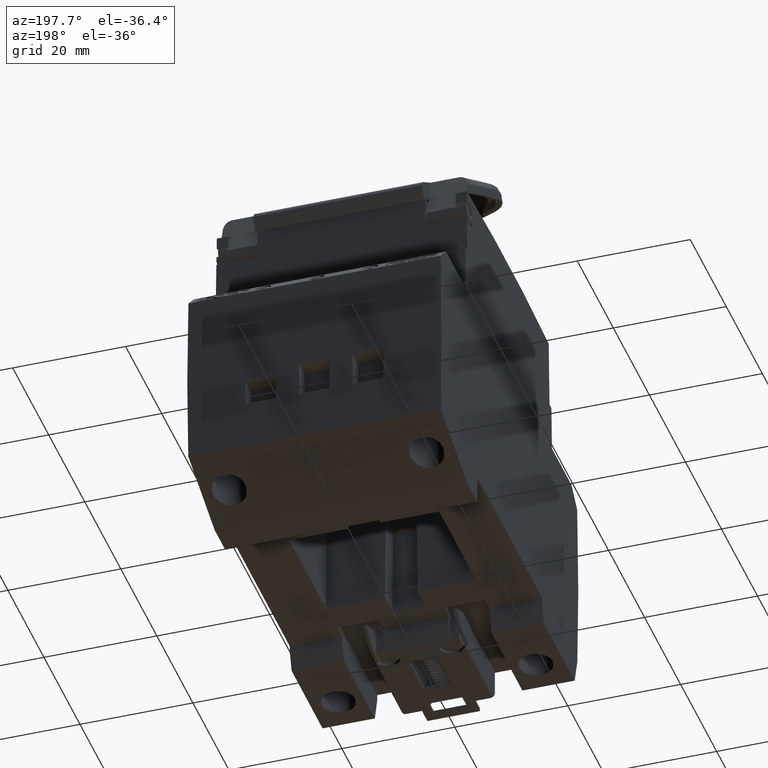
[diagram: clean part render]
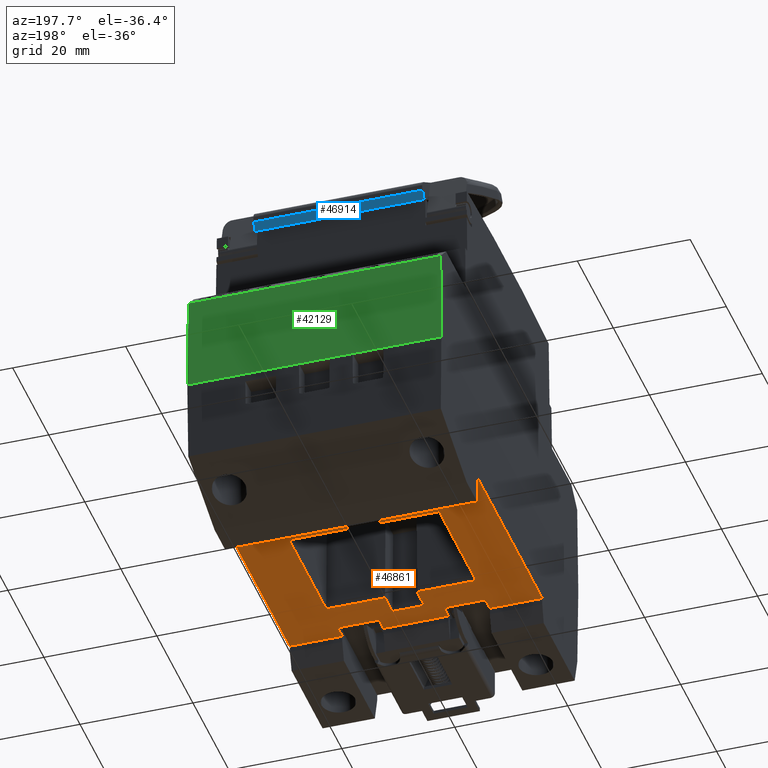
[diagram: same view with three faces highlighted in distinct colors, each labeled with its STEP entity id]
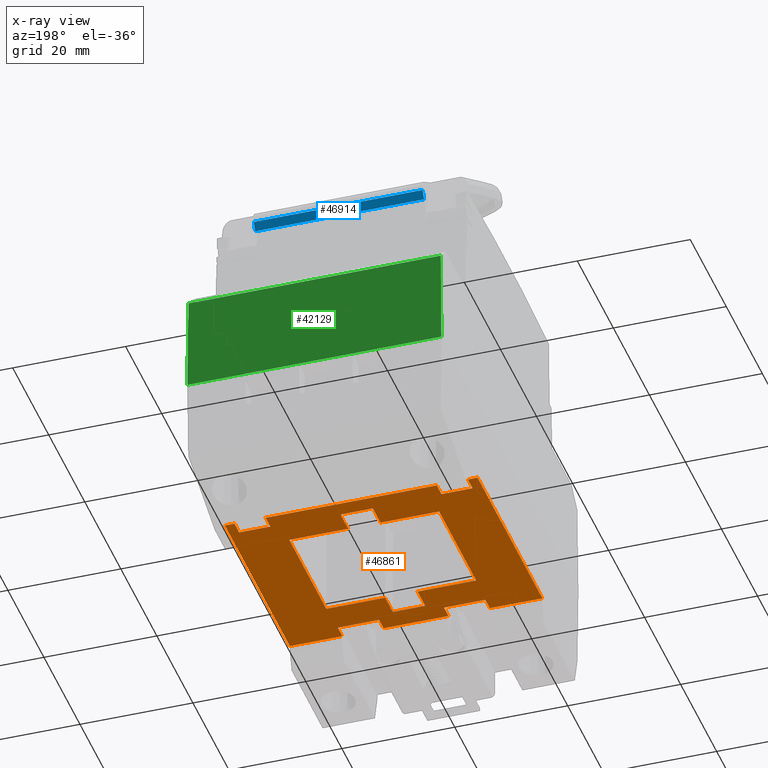
[diagram: x-ray of the same camera — body ghosted, the three highlighted faces saturated]
A machine part, auxiliary view with three faces highlighted in distinct colors.
The next image is the same camera in x-ray (body ghosted, the three faces saturated) — at least one of them is partly hidden behind the body in this view.
Their STEP definitions:

[orange] entity #46861 — the highlighted planar face has unit normal (0, -0, -1).
#3919 = DIRECTION ( 'NONE',  ( -0.0000000000000000000, -1.000000000000000000, 1.927470528863119800E-016 ) ) ;
#3927 = LINE ( 'NONE', #3958, #12830 ) ;
#3958 = CARTESIAN_POINT ( 'NONE',  ( -13.27919503604850100, -18.50000000000000000, -40.34999999999999400 ) ) ;
#3972 = LINE ( 'NONE', #3973, #12819 ) ;
#3973 = CARTESIAN_POINT ( 'NONE',  ( 2.881813096385507800, -18.50000000000000000, -40.34999999999999400 ) ) ;
#3980 = DIRECTION ( 'NONE',  ( -1.000000000000000000, -0.0000000000000000000, -0.0000000000000000000 ) ) ;
#3985 = DIRECTION ( 'NONE',  ( 0.0000000000000000000, 1.000000000000000000, -1.927470528863119800E-016 ) ) ;
#4003 = LINE ( 'NONE', #4012, #12780 ) ;
#4009 = DIRECTION ( 'NONE',  ( -0.0000000000000000000, -1.000000000000000000, 1.927470528863119800E-016 ) ) ;
#4012 = CARTESIAN_POINT ( 'NONE',  ( -30.75000000000000000, 10.27919503604852000, -40.35000000000000100 ) ) ;
#4020 = LINE ( 'NONE', #4022, #12802 ) ;
#4022 = CARTESIAN_POINT ( 'NONE',  ( -2.881813096385934500, -18.50000000000000000, -40.34999999999999400 ) ) ;
#4027 = CARTESIAN_POINT ( 'NONE',  ( -30.75000000000000000, -14.51810085573100300, -40.34999999999999400 ) ) ;
#4036 = LINE ( 'NONE', #4043, #12796 ) ;
#4039 = DIRECTION ( 'NONE',  ( 1.000000000000000000, 0.0000000000000000000, 0.0000000000000000000 ) ) ;
#4041 = LINE ( 'NONE', #4027, #12774 ) ;
#4043 = CARTESIAN_POINT ( 'NONE',  ( 13.27919503604810300, -18.50000000000000000, -40.34999999999999400 ) ) ;
#4044 = DIRECTION ( 'NONE',  ( 0.0000000000000000000, 1.000000000000000000, -1.927470528863119800E-016 ) ) ;
#4045 = LINE ( 'NONE', #4046, #12805 ) ;
#4046 = CARTESIAN_POINT ( 'NONE',  ( -30.75000000000000000, 10.27919503604842300, -40.35000000000000100 ) ) ;
#4064 = DIRECTION ( 'NONE',  ( -1.000000000000000000, -0.0000000000000000000, -0.0000000000000000000 ) ) ;
#4075 = LINE ( 'NONE', #4120, #12825 ) ;
#4079 = CARTESIAN_POINT ( 'NONE',  ( -30.75000000000000000, -18.50000000000000400, -40.34999999999999400 ) ) ;
#4086 = CARTESIAN_POINT ( 'NONE',  ( 13.06124280212683800, -18.50000000000000000, -40.34999999999999400 ) ) ;
#4095 = DIRECTION ( 'NONE',  ( 1.000000000000000000, 0.0000000000000000000, 0.0000000000000000000 ) ) ;
#4098 = DIRECTION ( 'NONE',  ( -1.000000000000000000, -0.0000000000000000000, -0.0000000000000000000 ) ) ;
#4106 = DIRECTION ( 'NONE',  ( 0.0000000000000000000, 1.000000000000000000, -1.927470528863119800E-016 ) ) ;
#4117 = LINE ( 'NONE', #4086, #12823 ) ;
#4118 = LINE ( 'NONE', #4079, #12800 ) ;
#4120 = CARTESIAN_POINT ( 'NONE',  ( -30.75000000000000000, -10.27919503604859800, -40.34999999999999400 ) ) ;
#12774 = VECTOR ( 'NONE', #4039, 1000.000000000000000 ) ;
#12780 = VECTOR ( 'NONE', #3980, 1000.000000000000000 ) ;
#12796 = VECTOR ( 'NONE', #4044, 1000.000000000000000 ) ;
#12800 = VECTOR ( 'NONE', #4098, 1000.000000000000000 ) ;
#12802 = VECTOR ( 'NONE', #4009, 1000.000000000000000 ) ;
#12805 = VECTOR ( 'NONE', #4064, 1000.000000000000000 ) ;
#12819 = VECTOR ( 'NONE', #3985, 1000.000000000000000 ) ;
#12823 = VECTOR ( 'NONE', #4106, 1000.000000000000000 ) ;
#12825 = VECTOR ( 'NONE', #4095, 1000.000000000000000 ) ;
#12830 = VECTOR ( 'NONE', #3919, 1000.000000000000000 ) ;
#13194 = VECTOR ( 'NONE', #59894, 1000.000000000000000 ) ;
#13200 = VECTOR ( 'NONE', #59912, 1000.000000000000000 ) ;
#13226 = VECTOR ( 'NONE', #59745, 1000.000000000000000 ) ;
#13238 = VECTOR ( 'NONE', #59737, 1000.000000000000000 ) ;
#13279 = VECTOR ( 'NONE', #60085, 1000.000000000000000 ) ;
#13575 = FACE_BOUND ( 'NONE', #44837, .T. ) ;
#13718 = LINE ( 'NONE', #13754, #28313 ) ;
#13754 = CARTESIAN_POINT ( 'NONE',  ( -30.75000000000000000, -16.00000000000000000, -40.34999999999999400 ) ) ;
#13809 = DIRECTION ( 'NONE',  ( -1.000000000000000000, -0.0000000000000000000, -0.0000000000000000000 ) ) ;
#15792 = CARTESIAN_POINT ( 'NONE',  ( 2.881813096385507800, -18.50000000000000000, -40.34999999999999400 ) ) ;
#15795 = LINE ( 'NONE', #15867, #28284 ) ;
#15810 = LINE ( 'NONE', #15941, #28203 ) ;
#15841 = DIRECTION ( 'NONE',  ( 0.0000000000000000000, 1.000000000000000000, -1.927470528863119800E-016 ) ) ;
#15854 = LINE ( 'NONE', #15792, #28275 ) ;
#15861 = DIRECTION ( 'NONE',  ( -1.000000000000000000, -0.0000000000000000000, -0.0000000000000000000 ) ) ;
#15867 = CARTESIAN_POINT ( 'NONE',  ( -30.75000000000000000, -18.50000000000000000, -40.34999999999999400 ) ) ;
#15902 = CARTESIAN_POINT ( 'NONE',  ( 20.66037011534779900, -18.50000000000000000, -40.34999999999999400 ) ) ;
#15908 = DIRECTION ( 'NONE',  ( 0.0000000000000000000, 1.000000000000000000, -1.927470528863119800E-016 ) ) ;
#15923 = CARTESIAN_POINT ( 'NONE',  ( -30.75000000000000000, 14.89256351279451700, -40.35000000000000100 ) ) ;
#15925 = DIRECTION ( 'NONE',  ( 1.000000000000000000, 0.0000000000000000000, 0.0000000000000000000 ) ) ;
#15941 = CARTESIAN_POINT ( 'NONE',  ( -15.16037011534780300, -18.50000000000000000, -40.34999999999999400 ) ) ;
#15942 = LINE ( 'NONE', #15993, #28205 ) ;
#15944 = DIRECTION ( 'NONE',  ( 0.0000000000000000000, 1.000000000000000000, -1.927470528863119800E-016 ) ) ;
#15971 = LINE ( 'NONE', #15923, #28210 ) ;
#15973 = LINE ( 'NONE', #15902, #28315 ) ;
#15977 = LINE ( 'NONE', #16062, #28328 ) ;
#15993 = CARTESIAN_POINT ( 'NONE',  ( -5.749999999999998200, -18.50000000000000000, -40.34999999999999400 ) ) ;
#16006 = DIRECTION ( 'NONE',  ( -0.0000000000000000000, -1.000000000000000000, 1.927470528863119800E-016 ) ) ;
#16008 = DIRECTION ( 'NONE',  ( 0.0000000000000000000, 1.000000000000000000, -1.927470528863119800E-016 ) ) ;
#16019 = DIRECTION ( 'NONE',  ( -1.000000000000000000, -0.0000000000000000000, -0.0000000000000000000 ) ) ;
#16021 = LINE ( 'NONE', #16023, #28371 ) ;
#16023 = CARTESIAN_POINT ( 'NONE',  ( 5.749999999999998200, -18.50000000000000000, -40.34999999999999400 ) ) ;
#16062 = CARTESIAN_POINT ( 'NONE',  ( -30.75000000000000000, -16.00000000000000000, -40.34999999999999400 ) ) ;
#16098 = CARTESIAN_POINT ( 'NONE',  ( -30.75000000000000000, -10.27919503604852000, -40.34999999999999400 ) ) ;
#16158 = LINE ( 'NONE', #16098, #28398 ) ;
#16161 = DIRECTION ( 'NONE',  ( 1.000000000000000000, 0.0000000000000000000, 0.0000000000000000000 ) ) ;
#16508 = LINE ( 'NONE', #16651, #28560 ) ;
#16541 = DIRECTION ( 'NONE',  ( -1.000000000000000000, -0.0000000000000000000, -0.0000000000000000000 ) ) ;
#16545 = CARTESIAN_POINT ( 'NONE',  ( -30.75000000000000000, -18.50000000000000000, -40.34999999999999400 ) ) ;
#16566 = LINE ( 'NONE', #16545, #28324 ) ;
#16588 = LINE ( 'NONE', #16590, #28434 ) ;
#16590 = CARTESIAN_POINT ( 'NONE',  ( -30.75000000000000000, 14.89256351279451700, -40.35000000000000100 ) ) ;
#16600 = LINE ( 'NONE', #16603, #28386 ) ;
#16601 = DIRECTION ( 'NONE',  ( -0.0000000000000000000, -1.000000000000000000, 1.927470528863119800E-016 ) ) ;
#16603 = CARTESIAN_POINT ( 'NONE',  ( -20.66037011534779900, -18.50000000000000000, -40.34999999999999400 ) ) ;
#16606 = DIRECTION ( 'NONE',  ( 1.000000000000000000, 0.0000000000000000000, 0.0000000000000000000 ) ) ;
#16642 = CARTESIAN_POINT ( 'NONE',  ( -13.06124280212683800, -18.50000000000000000, -40.34999999999999400 ) ) ;
#16647 = LINE ( 'NONE', #16668, #28580 ) ;
#16651 = CARTESIAN_POINT ( 'NONE',  ( -30.75000000000000000, 14.51810085573100300, -40.35000000000000100 ) ) ;
#16653 = CARTESIAN_POINT ( 'NONE',  ( -2.881813096385934500, -18.50000000000000000, -40.34999999999999400 ) ) ;
#16656 = DIRECTION ( 'NONE',  ( -0.0000000000000000000, -1.000000000000000000, 1.927470528863119800E-016 ) ) ;
#16661 = DIRECTION ( 'NONE',  ( -0.0000000000000000000, -1.000000000000000000, 1.927470528863119800E-016 ) ) ;
#16662 = DIRECTION ( 'NONE',  ( -0.0000000000000000000, -1.000000000000000000, 1.927470528863119800E-016 ) ) ;
#16666 = LINE ( 'NONE', #16642, #28570 ) ;
#16667 = LINE ( 'NONE', #16653, #28571 ) ;
#16668 = CARTESIAN_POINT ( 'NONE',  ( 15.16037011534780600, -18.50000000000000000, -40.34999999999999400 ) ) ;
#16673 = DIRECTION ( 'NONE',  ( -1.000000000000000000, -0.0000000000000000000, -0.0000000000000000000 ) ) ;
#20796 = PLANE ( 'NONE',  #28787 ) ;
#20800 = DIRECTION ( 'NONE',  ( 0.0000000000000000000, -1.927470528863119800E-016, -1.000000000000000000 ) ) ;
#20810 = FACE_OUTER_BOUND ( 'NONE', #44780, .T. ) ;
#20822 = DIRECTION ( 'NONE',  ( 0.0000000000000000000, 1.000000000000000000, -1.927470528863119800E-016 ) ) ;
#20833 = CARTESIAN_POINT ( 'NONE',  ( -30.75000000000000000, -18.50000000000000000, -40.34999999999999400 ) ) ;
#28203 = VECTOR ( 'NONE', #15908, 1000.000000000000000 ) ;
#28205 = VECTOR ( 'NONE', #16008, 1000.000000000000000 ) ;
#28210 = VECTOR ( 'NONE', #15925, 1000.000000000000000 ) ;
#28275 = VECTOR ( 'NONE', #15841, 1000.000000000000000 ) ;
#28284 = VECTOR ( 'NONE', #15861, 1000.000000000000000 ) ;
#28313 = VECTOR ( 'NONE', #13809, 1000.000000000000000 ) ;
#28315 = VECTOR ( 'NONE', #15944, 1000.000000000000000 ) ;
#28324 = VECTOR ( 'NONE', #16541, 1000.000000000000000 ) ;
#28328 = VECTOR ( 'NONE', #16019, 1000.000000000000000 ) ;
#28371 = VECTOR ( 'NONE', #16006, 1000.000000000000000 ) ;
#28386 = VECTOR ( 'NONE', #16601, 1000.000000000000000 ) ;
#28398 = VECTOR ( 'NONE', #16161, 1000.000000000000000 ) ;
#28434 = VECTOR ( 'NONE', #16606, 1000.000000000000000 ) ;
#28560 = VECTOR ( 'NONE', #16673, 1000.000000000000000 ) ;
#28570 = VECTOR ( 'NONE', #16661, 1000.000000000000000 ) ;
#28571 = VECTOR ( 'NONE', #16662, 1000.000000000000000 ) ;
#28580 = VECTOR ( 'NONE', #16656, 1000.000000000000000 ) ;
#28787 = AXIS2_PLACEMENT_3D ( 'NONE', #20833, #20800, #20822 ) ;
#32769 = CARTESIAN_POINT ( 'NONE',  ( 15.16037011534780300, 14.89256351279451900, -40.34999999999999400 ) ) ;
#32778 = CARTESIAN_POINT ( 'NONE',  ( -15.16037011534780300, 17.50000000000000000, -40.34999999999999400 ) ) ;
#32801 = CARTESIAN_POINT ( 'NONE',  ( -15.16037011534780300, 14.89256351279451900, -40.34999999999999400 ) ) ;
#32809 = CARTESIAN_POINT ( 'NONE',  ( 5.750000000000000000, -18.49999999999999600, -40.34999999999999400 ) ) ;
#32816 = CARTESIAN_POINT ( 'NONE',  ( -5.749999999999999100, -18.50000000000000000, -40.34999999999999400 ) ) ;
#32818 = CARTESIAN_POINT ( 'NONE',  ( -20.66037011534779900, 17.50000000000000000, -40.34999999999999400 ) ) ;
#32822 = CARTESIAN_POINT ( 'NONE',  ( 13.06124280212683800, -16.00000000000000000, -40.34999999999999400 ) ) ;
#32828 = CARTESIAN_POINT ( 'NONE',  ( 5.750000000000000000, -16.00000000000000400, -40.34999999999999400 ) ) ;
#32838 = CARTESIAN_POINT ( 'NONE',  ( 2.881813096385505500, 14.51810085573100300, -40.34999999999999400 ) ) ;
#32845 = CARTESIAN_POINT ( 'NONE',  ( 20.66037011534780300, 14.89256351279451900, -40.34999999999999400 ) ) ;
#32847 = CARTESIAN_POINT ( 'NONE',  ( -20.66037011534779900, 14.89256351279451900, -40.34999999999999400 ) ) ;
#32862 = CARTESIAN_POINT ( 'NONE',  ( 15.16037011534780600, 17.50000000000000000, -40.34999999999999400 ) ) ;
#32869 = CARTESIAN_POINT ( 'NONE',  ( -2.881813096385934500, 10.27919503604842600, -40.34999999999999400 ) ) ;
#32871 = CARTESIAN_POINT ( 'NONE',  ( 13.06124280212683800, -18.50000000000000400, -40.34999999999999400 ) ) ;
#32875 = CARTESIAN_POINT ( 'NONE',  ( 2.881813096385506000, -14.51810085573100300, -40.34999999999999400 ) ) ;
#32876 = CARTESIAN_POINT ( 'NONE',  ( 13.27919503604810300, -10.27919503604852000, -40.34999999999999400 ) ) ;
#32877 = CARTESIAN_POINT ( 'NONE',  ( 2.881813096385505100, -10.27919503604852000, -40.34999999999999400 ) ) ;
#32879 = CARTESIAN_POINT ( 'NONE',  ( -13.27919503604850200, -10.27919503604859700, -40.34999999999999400 ) ) ;
#32884 = CARTESIAN_POINT ( 'NONE',  ( -2.881813096385935000, 14.51810085573100300, -40.34999999999999400 ) ) ;
#32887 = CARTESIAN_POINT ( 'NONE',  ( -13.27919503604850100, 10.27919503604853400, -40.34999999999999400 ) ) ;
#32892 = CARTESIAN_POINT ( 'NONE',  ( 20.66037011534779900, 17.50000000000000000, -40.34999999999999400 ) ) ;
#32896 = CARTESIAN_POINT ( 'NONE',  ( -2.881813096385934500, -14.51810085573100300, -40.34999999999999400 ) ) ;
#32897 = CARTESIAN_POINT ( 'NONE',  ( -13.06124280212683800, -16.00000000000000400, -40.34999999999999400 ) ) ;
#32913 = CARTESIAN_POINT ( 'NONE',  ( -5.750000000000000000, -16.00000000000000000, -40.34999999999999400 ) ) ;
#32915 = CARTESIAN_POINT ( 'NONE',  ( 2.881813096385506000, 10.27919503604852200, -40.34999999999999400 ) ) ;
#32920 = CARTESIAN_POINT ( 'NONE',  ( -22.36537030573969900, -18.50000000000000400, -40.34999999999999400 ) ) ;
#32934 = CARTESIAN_POINT ( 'NONE',  ( 22.36537030573972000, -18.50000000000000400, -40.34999999999999400 ) ) ;
#32936 = CARTESIAN_POINT ( 'NONE',  ( -2.881813096385935400, -10.27919503604848800, -40.34999999999999400 ) ) ;
#32952 = CARTESIAN_POINT ( 'NONE',  ( 13.27919503604810300, 10.27919503604852000, -40.34999999999999400 ) ) ;
#32958 = CARTESIAN_POINT ( 'NONE',  ( -13.06124280212683800, -18.50000000000000000, -40.34999999999999400 ) ) ;
#33164 = CARTESIAN_POINT ( 'NONE',  ( 22.36537030573972000, 17.50000000000000000, -40.34999999999999400 ) ) ;
#33225 = CARTESIAN_POINT ( 'NONE',  ( -22.36537030573969900, 17.50000000000000000, -40.34999999999999400 ) ) ;
#37183 = VERTEX_POINT ( 'NONE', #32818 ) ;
#37187 = VERTEX_POINT ( 'NONE', #32828 ) ;
#37197 = VERTEX_POINT ( 'NONE', #32816 ) ;
#37232 = VERTEX_POINT ( 'NONE', #32801 ) ;
#37246 = VERTEX_POINT ( 'NONE', #32769 ) ;
#37248 = VERTEX_POINT ( 'NONE', #32778 ) ;
#37249 = VERTEX_POINT ( 'NONE', #32809 ) ;
#37263 = VERTEX_POINT ( 'NONE', #32822 ) ;
#37267 = VERTEX_POINT ( 'NONE', #32892 ) ;
#37283 = VERTEX_POINT ( 'NONE', #32862 ) ;
#37294 = VERTEX_POINT ( 'NONE', #32845 ) ;
#37323 = VERTEX_POINT ( 'NONE', #32838 ) ;
#37337 = VERTEX_POINT ( 'NONE', #32887 ) ;
#37341 = VERTEX_POINT ( 'NONE', #32877 ) ;
#37366 = VERTEX_POINT ( 'NONE', #32847 ) ;
#37392 = VERTEX_POINT ( 'NONE', #32869 ) ;
#37396 = VERTEX_POINT ( 'NONE', #32871 ) ;
#37402 = VERTEX_POINT ( 'NONE', #32876 ) ;
#37404 = VERTEX_POINT ( 'NONE', #32875 ) ;
#37406 = VERTEX_POINT ( 'NONE', #32879 ) ;
#37408 = VERTEX_POINT ( 'NONE', #32884 ) ;
#37427 = VERTEX_POINT ( 'NONE', #32934 ) ;
#37429 = VERTEX_POINT ( 'NONE', #32896 ) ;
#37439 = VERTEX_POINT ( 'NONE', #32897 ) ;
#37441 = VERTEX_POINT ( 'NONE', #32958 ) ;
#37443 = VERTEX_POINT ( 'NONE', #32952 ) ;
#37445 = VERTEX_POINT ( 'NONE', #32936 ) ;
#37448 = VERTEX_POINT ( 'NONE', #32913 ) ;
#37451 = VERTEX_POINT ( 'NONE', #32915 ) ;
#37488 = VERTEX_POINT ( 'NONE', #32920 ) ;
#38024 = VERTEX_POINT ( 'NONE', #33164 ) ;
#38085 = VERTEX_POINT ( 'NONE', #33225 ) ;
#40490 = ORIENTED_EDGE ( 'NONE', *, *, #43452, .T. ) ;
#40524 = ORIENTED_EDGE ( 'NONE', *, *, #43562, .T. ) ;
#41837 = ORIENTED_EDGE ( 'NONE', *, *, #52946, .T. ) ;
#41841 = ORIENTED_EDGE ( 'NONE', *, *, #52950, .T. ) ;
#41860 = ORIENTED_EDGE ( 'NONE', *, *, #53511, .T. ) ;
#41870 = ORIENTED_EDGE ( 'NONE', *, *, #43416, .T. ) ;
#41872 = ORIENTED_EDGE ( 'NONE', *, *, #52964, .T. ) ;
#41874 = ORIENTED_EDGE ( 'NONE', *, *, #52942, .T. ) ;
#41878 = ORIENTED_EDGE ( 'NONE', *, *, #43414, .T. ) ;
#41880 = ORIENTED_EDGE ( 'NONE', *, *, #52928, .T. ) ;
#41882 = ORIENTED_EDGE ( 'NONE', *, *, #43499, .T. ) ;
#41898 = ORIENTED_EDGE ( 'NONE', *, *, #43639, .T. ) ;
#41904 = ORIENTED_EDGE ( 'NONE', *, *, #43393, .T. ) ;
#41914 = ORIENTED_EDGE ( 'NONE', *, *, #53485, .T. ) ;
#41931 = ORIENTED_EDGE ( 'NONE', *, *, #53536, .T. ) ;
#41939 = ORIENTED_EDGE ( 'NONE', *, *, #53493, .T. ) ;
#41943 = ORIENTED_EDGE ( 'NONE', *, *, #43423, .T. ) ;
#41950 = ORIENTED_EDGE ( 'NONE', *, *, #52954, .T. ) ;
#41952 = ORIENTED_EDGE ( 'NONE', *, *, #52929, .T. ) ;
#41954 = ORIENTED_EDGE ( 'NONE', *, *, #43649, .T. ) ;
#41979 = ORIENTED_EDGE ( 'NONE', *, *, #53501, .T. ) ;
#41987 = ORIENTED_EDGE ( 'NONE', *, *, #43645, .T. ) ;
#41996 = ORIENTED_EDGE ( 'NONE', *, *, #43605, .T. ) ;
#42003 = ORIENTED_EDGE ( 'NONE', *, *, #43471, .T. ) ;
#42013 = ORIENTED_EDGE ( 'NONE', *, *, #52938, .T. ) ;
#42015 = ORIENTED_EDGE ( 'NONE', *, *, #43436, .T. ) ;
#42019 = ORIENTED_EDGE ( 'NONE', *, *, #43665, .T. ) ;
#42020 = ORIENTED_EDGE ( 'NONE', *, *, #43614, .T. ) ;
#42028 = ORIENTED_EDGE ( 'NONE', *, *, #43450, .T. ) ;
#42046 = ORIENTED_EDGE ( 'NONE', *, *, #43469, .T. ) ;
#42056 = ORIENTED_EDGE ( 'NONE', *, *, #52930, .T. ) ;
#42065 = ORIENTED_EDGE ( 'NONE', *, *, #52923, .T. ) ;
#43393 = EDGE_CURVE ( 'NONE', #37263, #37187, #13718, .T. ) ;
#43414 = EDGE_CURVE ( 'NONE', #37404, #37341, #15854, .T. ) ;
#43416 = EDGE_CURVE ( 'NONE', #37441, #37488, #15795, .T. ) ;
#43423 = EDGE_CURVE ( 'NONE', #37294, #37267, #15973, .T. ) ;
#43436 = EDGE_CURVE ( 'NONE', #37366, #37232, #15971, .T. ) ;
#43450 = EDGE_CURVE ( 'NONE', #37232, #37248, #15810, .T. ) ;
#43452 = EDGE_CURVE ( 'NONE', #37197, #37448, #15942, .T. ) ;
#43469 = EDGE_CURVE ( 'NONE', #37448, #37439, #15977, .T. ) ;
#43471 = EDGE_CURVE ( 'NONE', #37187, #37249, #16021, .T. ) ;
#43499 = EDGE_CURVE ( 'NONE', #37341, #37402, #16158, .T. ) ;
#43562 = EDGE_CURVE ( 'NONE', #37249, #37197, #16566, .T. ) ;
#43605 = EDGE_CURVE ( 'NONE', #37183, #37366, #16600, .T. ) ;
#43614 = EDGE_CURVE ( 'NONE', #37246, #37294, #16588, .T. ) ;
#43639 = EDGE_CURVE ( 'NONE', #37283, #37246, #16647, .T. ) ;
#43645 = EDGE_CURVE ( 'NONE', #37439, #37441, #16666, .T. ) ;
#43649 = EDGE_CURVE ( 'NONE', #37323, #37408, #16508, .T. ) ;
#43665 = EDGE_CURVE ( 'NONE', #37445, #37429, #16667, .T. ) ;
#44780 = EDGE_LOOP ( 'NONE', ( #41870, #41931, #41939, #41996, #42015, #42028, #41979, #41898, #42020, #41943, #41860, #41914, #41950, #41872, #41904, #42003, #40524, #40490, #42046, #41987 ) ) ;
#44837 = EDGE_LOOP ( 'NONE', ( #42019, #41874, #41878, #41882, #41837, #41952, #42056, #41954, #41880, #42013, #42065, #41841 ) ) ;
#46861 = ADVANCED_FACE ( 'NONE', ( #13575, #20810 ), #20796, .T. ) ;
#52923 = EDGE_CURVE ( 'NONE', #37337, #37406, #3927, .T. ) ;
#52928 = EDGE_CURVE ( 'NONE', #37408, #37392, #4020, .T. ) ;
#52929 = EDGE_CURVE ( 'NONE', #37443, #37451, #4003, .T. ) ;
#52930 = EDGE_CURVE ( 'NONE', #37451, #37323, #3972, .T. ) ;
#52938 = EDGE_CURVE ( 'NONE', #37392, #37337, #4045, .T. ) ;
#52942 = EDGE_CURVE ( 'NONE', #37429, #37404, #4041, .T. ) ;
#52946 = EDGE_CURVE ( 'NONE', #37402, #37443, #4036, .T. ) ;
#52950 = EDGE_CURVE ( 'NONE', #37406, #37445, #4075, .T. ) ;
#52954 = EDGE_CURVE ( 'NONE', #37427, #37396, #4118, .T. ) ;
#52964 = EDGE_CURVE ( 'NONE', #37396, #37263, #4117, .T. ) ;
#53485 = EDGE_CURVE ( 'NONE', #38024, #37427, #59757, .T. ) ;
#53493 = EDGE_CURVE ( 'NONE', #38085, #37183, #59743, .T. ) ;
#53501 = EDGE_CURVE ( 'NONE', #37248, #37283, #59872, .T. ) ;
#53511 = EDGE_CURVE ( 'NONE', #37267, #38024, #59934, .T. ) ;
#53536 = EDGE_CURVE ( 'NONE', #37488, #38085, #60020, .T. ) ;
#59737 = DIRECTION ( 'NONE',  ( -0.0000000000000000000, -1.000000000000000000, 0.0000000000000000000 ) ) ;
#59743 = LINE ( 'NONE', #59744, #13226 ) ;
#59744 = CARTESIAN_POINT ( 'NONE',  ( -30.75000000000000000, 17.50000000000000400, -40.35000000000000100 ) ) ;
#59745 = DIRECTION ( 'NONE',  ( 1.000000000000000000, 0.0000000000000000000, 0.0000000000000000000 ) ) ;
#59757 = LINE ( 'NONE', #59758, #13238 ) ;
#59758 = CARTESIAN_POINT ( 'NONE',  ( 22.36537030573972400, 65.75000000000000000, -40.34999999999999400 ) ) ;
#59848 = CARTESIAN_POINT ( 'NONE',  ( -30.75000000000000000, 17.50000000000000400, -40.35000000000000100 ) ) ;
#59872 = LINE ( 'NONE', #59848, #13194 ) ;
#59894 = DIRECTION ( 'NONE',  ( 1.000000000000000000, 0.0000000000000000000, 0.0000000000000000000 ) ) ;
#59912 = DIRECTION ( 'NONE',  ( 1.000000000000000000, 0.0000000000000000000, 0.0000000000000000000 ) ) ;
#59934 = LINE ( 'NONE', #59947, #13200 ) ;
#59947 = CARTESIAN_POINT ( 'NONE',  ( -30.75000000000000000, 17.50000000000000400, -40.35000000000000100 ) ) ;
#60020 = LINE ( 'NONE', #60094, #13279 ) ;
#60085 = DIRECTION ( 'NONE',  ( 0.0000000000000000000, 1.000000000000000000, 0.0000000000000000000 ) ) ;
#60094 = CARTESIAN_POINT ( 'NONE',  ( -22.36537030573969900, 65.75000000000000000, -40.34999999999999400 ) ) ;

[blue] entity #46914 — the highlighted planar face has unit normal (0, -0.866, 0.5).
#5847 = CARTESIAN_POINT ( 'NONE',  ( 22.55801110545256100, 24.73511726833766700, 16.53057188860930500 ) ) ;
#5864 = LINE ( 'NONE', #5847, #13032 ) ;
#5871 = DIRECTION ( 'NONE',  ( -1.000000000000000000, -1.331956608864461500E-016, 7.690055066765564600E-017 ) ) ;
#13032 = VECTOR ( 'NONE', #5871, 1000.000000000000000 ) ;
#13233 = VECTOR ( 'NONE', #59943, 999.9999999999998900 ) ;
#13243 = VECTOR ( 'NONE', #59667, 1000.000000000000100 ) ;
#13247 = VECTOR ( 'NONE', #59624, 1000.000000000000000 ) ;
#21068 = FACE_OUTER_BOUND ( 'NONE', #44917, .T. ) ;
#21070 = DIRECTION ( 'NONE',  ( 1.538011013353475100E-016, -0.8660254037845066500, 0.4999999999998822600 ) ) ;
#21071 = CARTESIAN_POINT ( 'NONE',  ( 22.55801110545256100, 30.79858643927296700, 27.03280856280007400 ) ) ;
#21087 = DIRECTION ( 'NONE',  ( 0.0000000000000000000, -0.4999999999998822100, -0.8660254037845065400 ) ) ;
#21091 = PLANE ( 'NONE',  #28852 ) ;
#28852 = AXIS2_PLACEMENT_3D ( 'NONE', #21071, #21070, #21087 ) ;
#33093 = CARTESIAN_POINT ( 'NONE',  ( 14.94882787691398500, 24.73511726833766700, 16.53057188860930500 ) ) ;
#33122 = CARTESIAN_POINT ( 'NONE',  ( -14.94882787691398500, 24.73511726833766700, 16.53057188860930900 ) ) ;
#33175 = CARTESIAN_POINT ( 'NONE',  ( -14.96873649000595600, 23.92861695572124600, 15.13367237083696400 ) ) ;
#33266 = CARTESIAN_POINT ( 'NONE',  ( 14.96873649000595000, 23.92861695572123200, 15.13367237083696500 ) ) ;
#37803 = VERTEX_POINT ( 'NONE', #33122 ) ;
#37842 = VERTEX_POINT ( 'NONE', #33093 ) ;
#37923 = VERTEX_POINT ( 'NONE', #33175 ) ;
#38071 = VERTEX_POINT ( 'NONE', #33266 ) ;
#40708 = ORIENTED_EDGE ( 'NONE', *, *, #53455, .T. ) ;
#40763 = ORIENTED_EDGE ( 'NONE', *, *, #53472, .F. ) ;
#40813 = ORIENTED_EDGE ( 'NONE', *, *, #53258, .F. ) ;
#40831 = ORIENTED_EDGE ( 'NONE', *, *, #53515, .F. ) ;
#44917 = EDGE_LOOP ( 'NONE', ( #40708, #40763, #40813, #40831 ) ) ;
#46914 = ADVANCED_FACE ( 'NONE', ( #21068 ), #21091, .F. ) ;
#53258 = EDGE_CURVE ( 'NONE', #37842, #37803, #5864, .T. ) ;
#53455 = EDGE_CURVE ( 'NONE', #38071, #37923, #59618, .T. ) ;
#53472 = EDGE_CURVE ( 'NONE', #37803, #37923, #59641, .T. ) ;
#53515 = EDGE_CURVE ( 'NONE', #38071, #37842, #59933, .T. ) ;
#59603 = CARTESIAN_POINT ( 'NONE',  ( 37.15000000000002000, 23.92861695572123900, 15.13367237083695800 ) ) ;
#59618 = LINE ( 'NONE', #59603, #13247 ) ;
#59624 = DIRECTION ( 'NONE',  ( -1.000000000000000000, -2.503857664562135000E-016, 1.445602896647002400E-016 ) ) ;
#59641 = LINE ( 'NONE', #59660, #13243 ) ;
#59660 = CARTESIAN_POINT ( 'NONE',  ( -14.94882787691398500, 24.73511726833766700, 16.53057188860930900 ) ) ;
#59667 = DIRECTION ( 'NONE',  ( -0.01234165475093692900, -0.4999619194392284100, -0.8659594463187356700 ) ) ;
#59933 = LINE ( 'NONE', #59942, #13233 ) ;
#59942 = CARTESIAN_POINT ( 'NONE',  ( 14.96873649000594900, 23.92861695572121800, 15.13367237083698700 ) ) ;
#59943 = DIRECTION ( 'NONE',  ( -0.01234165475093264000, 0.4999619194392547800, 0.8659594463187205700 ) ) ;

[green] entity #42129 — the highlighted planar face has unit normal (-0, -1, -0.0087).
#10165 = CARTESIAN_POINT ( 'NONE',  ( 22.34846100251789700, 37.80595938418668600, -8.062385769192545100 ) ) ;
#11106 = PLANE ( 'NONE',  #57084 ) ;
#11108 = DIRECTION ( 'NONE',  ( -7.242836678516943300E-019, -0.9999619230641713100, -0.008726535498374038800 ) ) ;
#11120 = FACE_OUTER_BOUND ( 'NONE', #45034, .T. ) ;
#11121 = DIRECTION ( 'NONE',  ( 0.0000000000000000000, 0.008726535498374038800, -0.9999619230641713100 ) ) ;
#11134 = CARTESIAN_POINT ( 'NONE',  ( 29.50000000000000700, 37.80616871699388800, -8.086372932999189800 ) ) ;
#18317 = EDGE_CURVE ( 'NONE', #38172, #38203, #18894, .T. ) ;
#18322 = EDGE_CURVE ( 'NONE', #38198, #38172, #18957, .T. ) ;
#18331 = EDGE_CURVE ( 'NONE', #38203, #38302, #19009, .T. ) ;
#18355 = EDGE_CURVE ( 'NONE', #38198, #38302, #19133, .T. ) ;
#18894 = LINE ( 'NONE', #18903, #56912 ) ;
#18903 = CARTESIAN_POINT ( 'NONE',  ( 29.50000000000000700, 37.95551707782796300, -25.19999999999999900 ) ) ;
#18904 = DIRECTION ( 'NONE',  ( 1.000000000000000000, -7.242560893489517300E-019, -6.320487138400362500E-021 ) ) ;
#18957 = LINE ( 'NONE', #18992, #56915 ) ;
#18990 = DIRECTION ( 'NONE',  ( -0.008726203243948368500, 0.008726203243944319700, -0.9999238504775704900 ) ) ;
#18992 = CARTESIAN_POINT ( 'NONE',  ( -22.34846100251808600, 37.80595938418667900, -8.062385769192543300 ) ) ;
#19000 = CARTESIAN_POINT ( 'NONE',  ( 22.49801869615919300, 37.95551707782796300, -25.19999999999999900 ) ) ;
#19001 = DIRECTION ( 'NONE',  ( -0.008726203243947761400, -0.008726203243943511300, 0.9999238504775704900 ) ) ;
#19009 = LINE ( 'NONE', #19000, #56918 ) ;
#19133 = LINE ( 'NONE', #19152, #56964 ) ;
#19152 = CARTESIAN_POINT ( 'NONE',  ( -85.08962988465219700, 37.80595938418668600, -8.062385769192550500 ) ) ;
#19154 = DIRECTION ( 'NONE',  ( 1.000000000000000000, 0.0000000000000000000, 0.0000000000000000000 ) ) ;
#26772 = ORIENTED_EDGE ( 'NONE', *, *, #18355, .T. ) ;
#26798 = ORIENTED_EDGE ( 'NONE', *, *, #18322, .F. ) ;
#26821 = ORIENTED_EDGE ( 'NONE', *, *, #18331, .F. ) ;
#26870 = ORIENTED_EDGE ( 'NONE', *, *, #18317, .F. ) ;
#33281 = CARTESIAN_POINT ( 'NONE',  ( -22.49801869615944500, 37.95551707782796300, -25.19999999999999900 ) ) ;
#33291 = CARTESIAN_POINT ( 'NONE',  ( 22.49801869615926700, 37.95551707782796300, -25.19999999999999900 ) ) ;
#33320 = CARTESIAN_POINT ( 'NONE',  ( -22.34846100251808600, 37.80595938418668600, -8.062385769192543300 ) ) ;
#38172 = VERTEX_POINT ( 'NONE', #33281 ) ;
#38198 = VERTEX_POINT ( 'NONE', #33320 ) ;
#38203 = VERTEX_POINT ( 'NONE', #33291 ) ;
#38302 = VERTEX_POINT ( 'NONE', #10165 ) ;
#42129 = ADVANCED_FACE ( 'NONE', ( #11120 ), #11106, .F. ) ;
#45034 = EDGE_LOOP ( 'NONE', ( #26870, #26798, #26772, #26821 ) ) ;
#56912 = VECTOR ( 'NONE', #18904, 1000.000000000000000 ) ;
#56915 = VECTOR ( 'NONE', #18990, 1000.000000000000000 ) ;
#56918 = VECTOR ( 'NONE', #19001, 1000.000000000000000 ) ;
#56964 = VECTOR ( 'NONE', #19154, 1000.000000000000000 ) ;
#57084 = AXIS2_PLACEMENT_3D ( 'NONE', #11134, #11108, #11121 ) ;